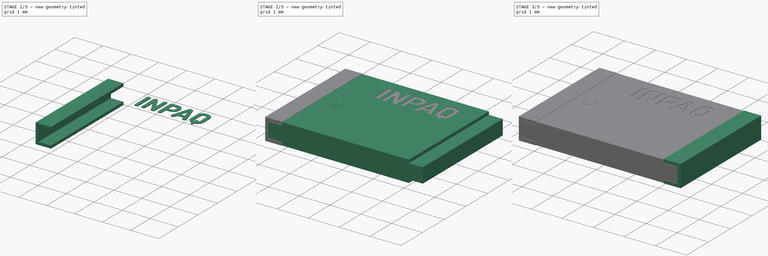
[diagram: build sequence overview — one tinted view per stage of 3, left to right]
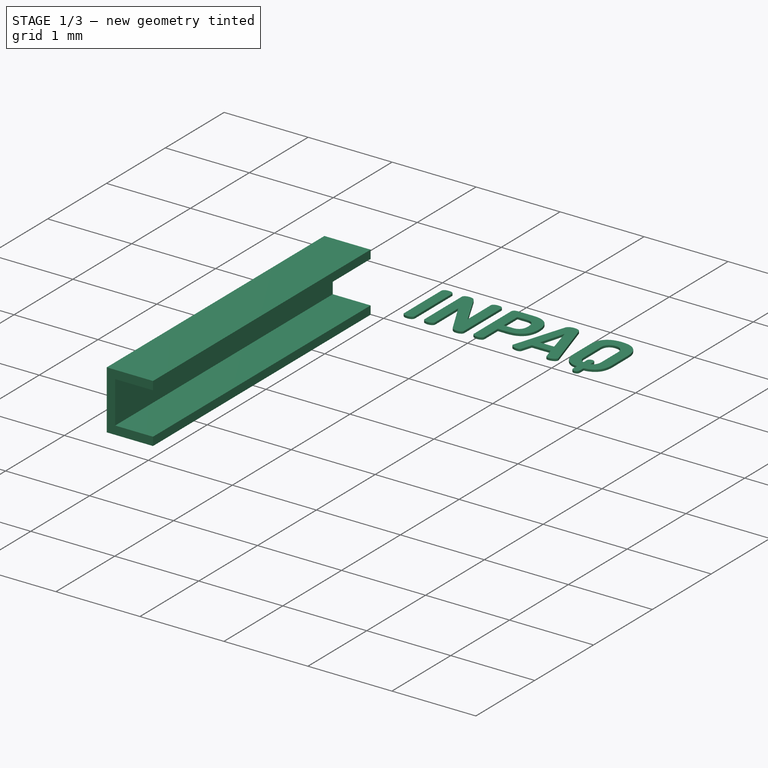
[diagram: stage 1 of 3 — iso view after this stage's code; geometry added in this stage tinted green]
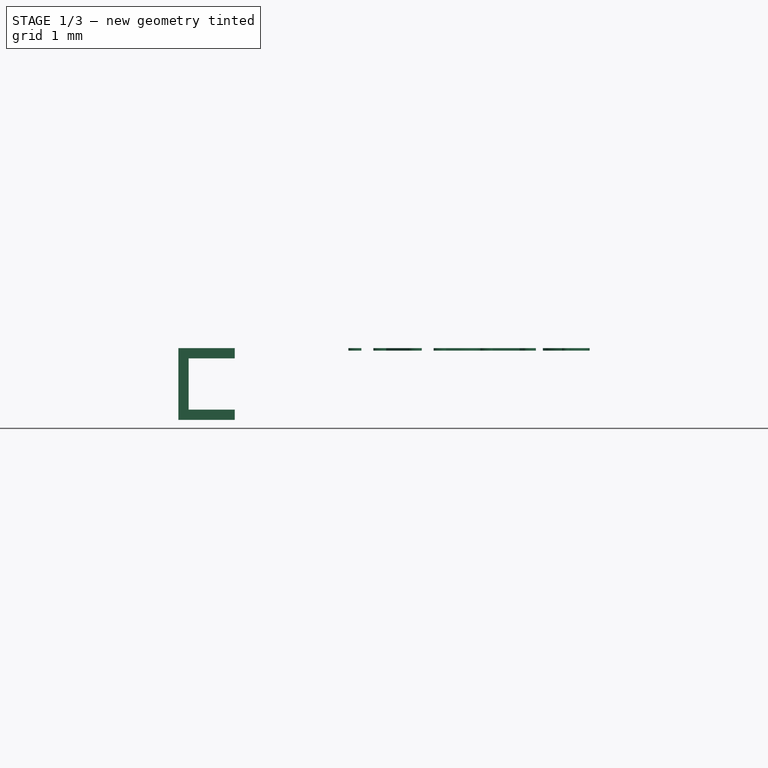
[diagram: stage 1 of 3 — front view after this stage's code; geometry added in this stage tinted green]
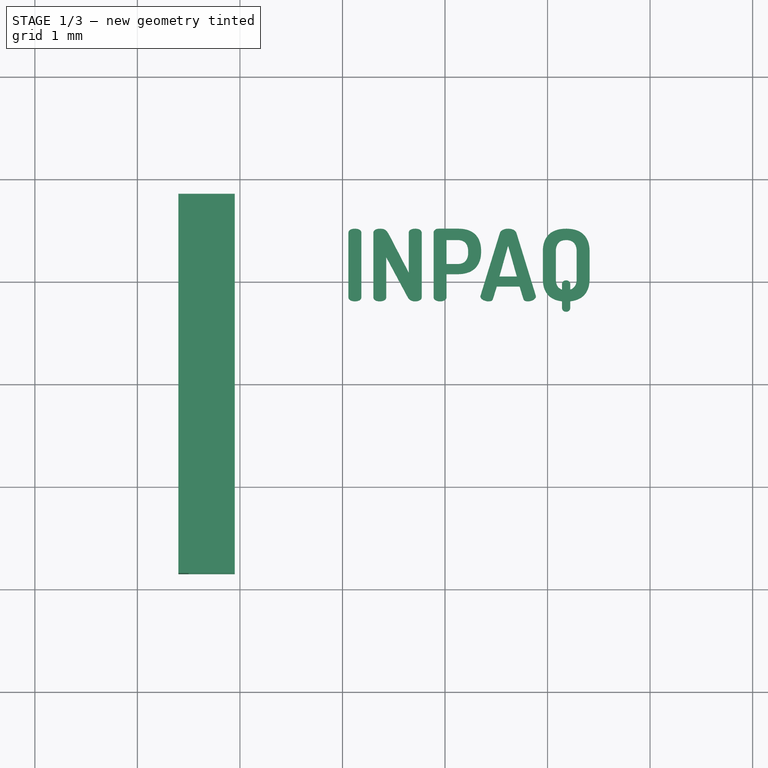
[diagram: stage 1 of 3 — top view after this stage's code; geometry added in this stage tinted green]
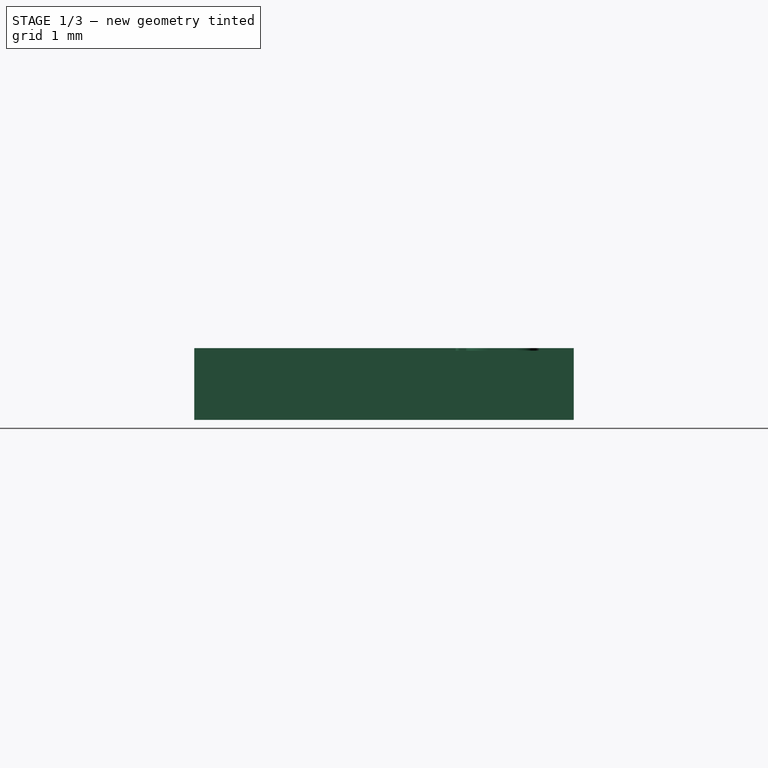
[diagram: stage 1 of 3 — right view after this stage's code; geometry added in this stage tinted green]
FCSTD DOCUMENT  (FreeCAD 0.17R13519 (Git))
Label: ant_bt_inpaq_5036
License: All rights reserved
LicenseURL: http://en.wikipedia.org/wiki/All_rights_reserved
objects: Sketcher::SketchObject×5, PartDesign::Pad×5, PartDesign::Body×5, Part::Part2DObjectPython×1, Part::Extrusion×1, Part::Cut×1, Part::MultiFuse×1
note: 24 computed .brp shape members not serialized (recipe doc carries the construction recipe); baked Part::Feature solids carry a one-line shape summary decoded from their .brp

FEATURE [PartDesign::Body] Body002
  Group = -> [Sketch002,Pad002]
  Origin = -> Origin002
  Placement = pos=(0,0,0.7) rot=(0,1,0;3.14159rad)
  Tip = -> Pad002
FEATURE [Sketcher::SketchObject] Sketch003
  MapMode = 5
  Placement = pos=(0,0,0) rot=(1,0,0;1.5708rad)
  Support = -> [XZ_Plane003]
  sketch-geometry (12):
    g0: LineSegment StartX=-2.5 StartY=0.59 StartZ=0 EndX=-2.05 EndY=0.59 EndZ=0
    g1: LineSegment StartX=-2.05 StartY=0.59 StartZ=0 EndX=-2.05 EndY=0.69 EndZ=0
    g2: LineSegment StartX=-2.05 StartY=0.69 StartZ=0 EndX=2.05 EndY=0.69 EndZ=0
    g3: LineSegment StartX=2.05 StartY=0.69 StartZ=0 EndX=2.05 EndY=0.59 EndZ=0
    g4: LineSegment StartX=2.05 StartY=0.59 StartZ=0 EndX=2.5 EndY=0.59 EndZ=0
    g5: LineSegment StartX=2.5 StartY=0.59 StartZ=0 EndX=2.5 EndY=0.11 EndZ=0
    g6: LineSegment StartX=2.5 StartY=0.11 StartZ=0 EndX=2.05 EndY=0.11 EndZ=0
    g7: LineSegment StartX=2.05 StartY=0.11 StartZ=0 EndX=2.05 EndY=0.01 EndZ=0
    g8: LineSegment StartX=2.05 StartY=0.01 StartZ=0 EndX=-2.05 EndY=0.01 EndZ=0
    g9: LineSegment StartX=-2.05 StartY=0.01 StartZ=0 EndX=-2.05 EndY=0.11 EndZ=0
    g10: LineSegment StartX=-2.05 StartY=0.11 StartZ=0 EndX=-2.5 EndY=0.11 EndZ=0
    g11: LineSegment StartX=-2.5 StartY=0.11 StartZ=0 EndX=-2.5 EndY=0.59 EndZ=0
  constraints (37):
    c: Horizontal(g0)
    c: Coincident(g0,g1)
    c: Vertical(g1)
    c: Coincident(g1,g2)
    c: Horizontal(g2)
    c: Coincident(g2,g3)
    c: Coincident(g3,g4)
    c: Horizontal(g4)
    c: Coincident(g4,g5)
    c: Vertical(g5)
    c: Coincident(g5,g6)
    c: Horizontal(g6)
    c: Coincident(g6,g7)
    c: Coincident(g7,g8)
    c: Horizontal(g8)
    c: Coincident(g8,g9)
    c: Vertical(g9)
    c: Coincident(g9,g10)
    c: Coincident(g10,g11)
    c: Coincident(g11,g0)
    c: Vertical(g11)
    c: Horizontal(g10)
    c: Vertical(g7)
    c: Vertical(g3)
    c: Equal(g2,g8)
    c: Equal(g1,g9)
    c: Equal(g9,g7)
    c: Equal(g7,g3)
    c: Equal(g0,g10)
    c: Equal(g10,g4)
    c: Equal(g4,g6)
    c: Symmetric(g10,g5,g-2)
    c: DistanceX(g0,g0) = 0.45
    c: DistanceY(g1,g1) = 0.1
    c: DistanceY(g11,g11) = 0.48
    c: DistanceX(g10,g5) = 5
    c: DistanceY(g-1,g8) = 0.01
FEATURE [PartDesign::Pad] Pad003
  Length = 3.7
  Length2 = 100
  Midplane = true
  Placement = pos=(0,0,0) rot=(1,0,0;1.5708rad)
  Profile = -> Sketch003
  Type = 0
FEATURE [PartDesign::Body] Body005
  Group = -> [Sketch005,Pad005]
  Origin = -> Origin005
  Tip = -> Pad005
FEATURE [Part::Part2DObjectPython] ShapeString  # Draft 2D object (typed FeaturePython)
  FontFile = <path>
  Placement = pos=(-1,0.8,0.7) rot=(0,0,-1;0rad)
  Size = 0.4
  String = INPAQ
  Support = -> [Pad003]
  Tracking = 0
FEATURE [Part::Extrusion] Extrude002
  Base = -> ShapeString
  Dir = (0,0,1)
  DirMode = 2
  FaceMakerClass = Part::FaceMakerBullseye
  LengthFwd = 0.025
  LengthRev = 0
  Reversed = true
  Solid = false
  Symmetric = false
FEATURE [Sketcher::SketchObject] Sketch001
  MapMode = 5
  Placement = pos=(0,0,0) rot=(1,0,0;1.5708rad)
  Support = -> [XZ_Plane001]
  sketch-geometry (8):
    g0: LineSegment StartX=-2.05 StartY=0.6 StartZ=0 EndX=-2.5 EndY=0.6 EndZ=0
    g1: LineSegment StartX=-2.5 StartY=0.6 StartZ=0 EndX=-2.5 EndY=0.1 EndZ=0
    g2: LineSegment StartX=-2.5 StartY=0.1 StartZ=0 EndX=-2.05 EndY=0.1 EndZ=0
    g3: LineSegment StartX=-2.05 StartY=0.1 StartZ=0 EndX=-2.05 EndY=0 EndZ=0
    g4: LineSegment StartX=-2.05 StartY=0 StartZ=0 EndX=-2.6 EndY=0 EndZ=0
    g5: LineSegment StartX=-2.6 StartY=0 StartZ=0 EndX=-2.6 EndY=0.7 EndZ=0
    g6: LineSegment StartX=-2.6 StartY=0.7 StartZ=0 EndX=-2.05 EndY=0.7 EndZ=0
    g7: LineSegment StartX=-2.05 StartY=0.7 StartZ=0 EndX=-2.05 EndY=0.6 EndZ=0
  constraints (25):
    c: Horizontal(g0)
    c: Coincident(g0,g1)
    c: Vertical(g1)
    c: Coincident(g1,g2)
    c: Horizontal(g2)
    c: Coincident(g2,g3)
    c: Vertical(g3)
    c: Coincident(g3,g4)
    c: Horizontal(g4)
    c: Coincident(g4,g5)
    c: Vertical(g5)
    c: Coincident(g5,g6)
    c: Horizontal(g6)
    c: Coincident(g6,g7)
    c: Vertical(g7)
    c: Equal(g0,g2)
    c: Equal(g6,g4)
    c: DistanceY(g1,g1) = 0.5
    c: Coincident(g0,g7)
    c: DistanceX(g4,g4) = 0.55
    c: DistanceX(g0,g0) = 0.45
    c: Equal(g7,g3)
    c: PointOnObject(g3,g-1)
    c: DistanceY(g5,g5) = 0.7
    c: DistanceX(g5,g-1) = 2.6
FEATURE [PartDesign::Pad] Pad001
  Length = 3.7
  Length2 = 100
  Midplane = true
  Placement = pos=(0,0,0) rot=(1,0,0;1.5708rad)
  Profile = -> Sketch001
  Refine = true
  Type = 0
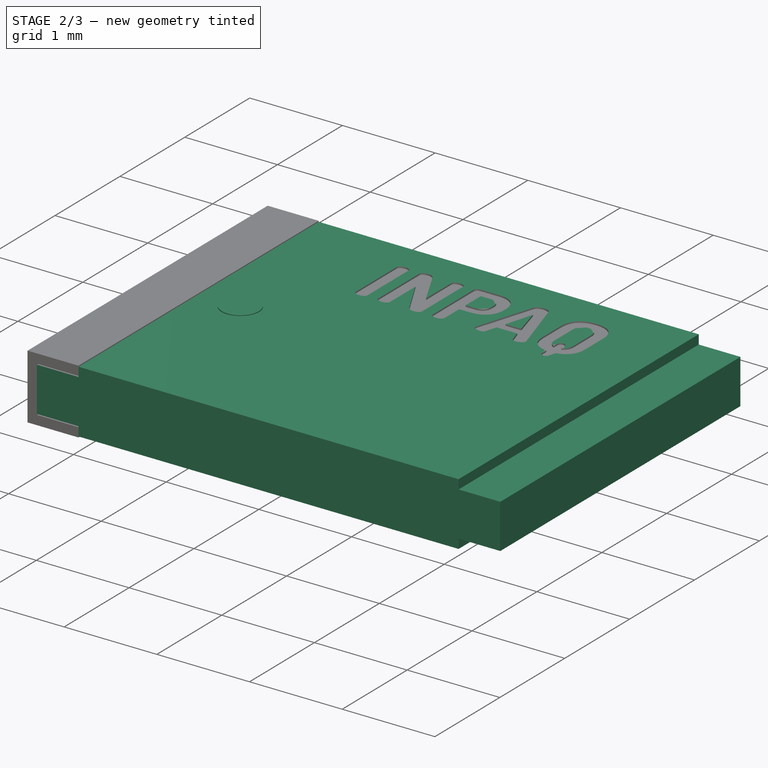
[diagram: stage 2 of 3 — iso view after this stage's code; geometry added in this stage tinted green]
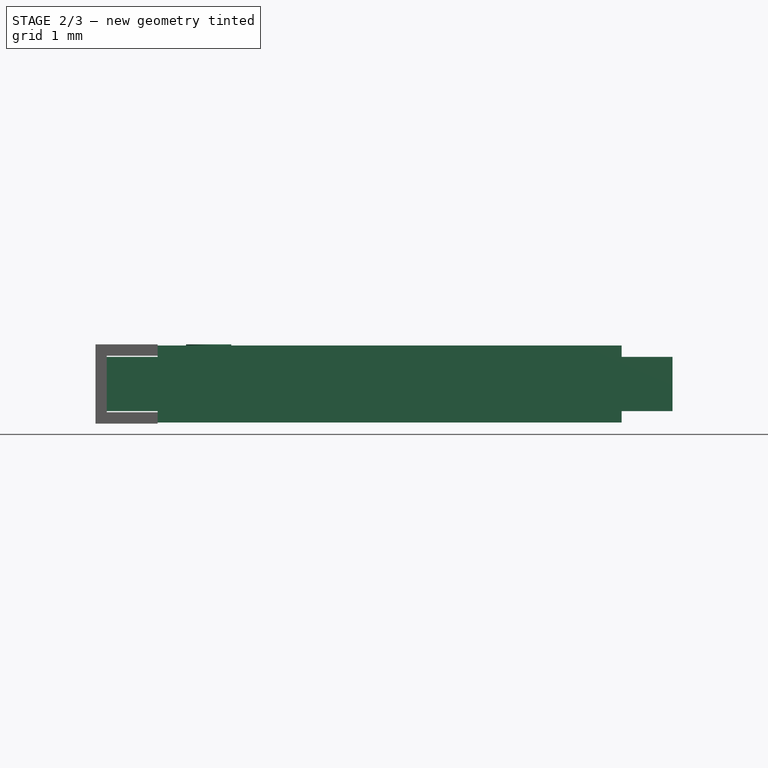
[diagram: stage 2 of 3 — front view after this stage's code; geometry added in this stage tinted green]
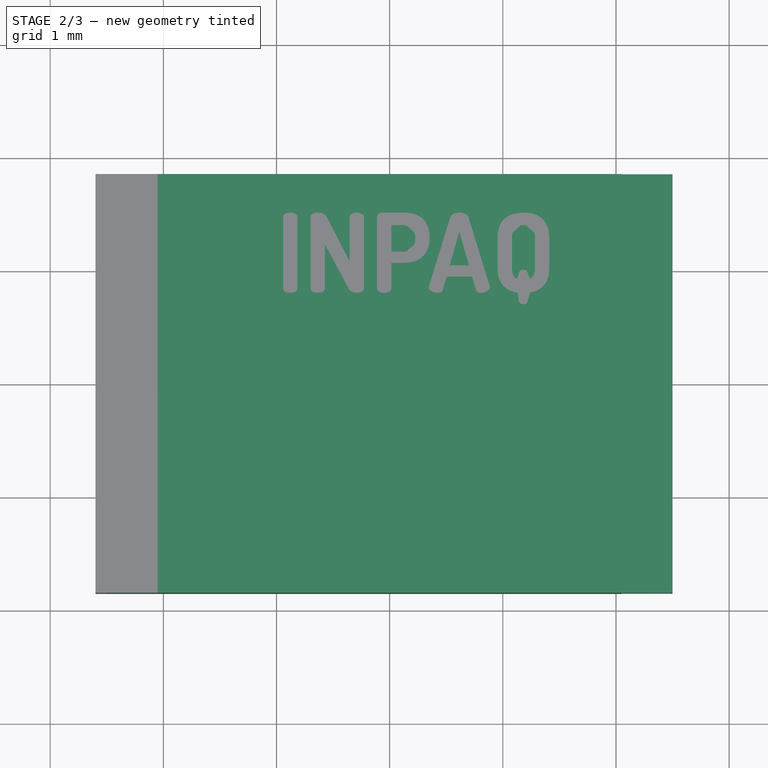
[diagram: stage 2 of 3 — top view after this stage's code; geometry added in this stage tinted green]
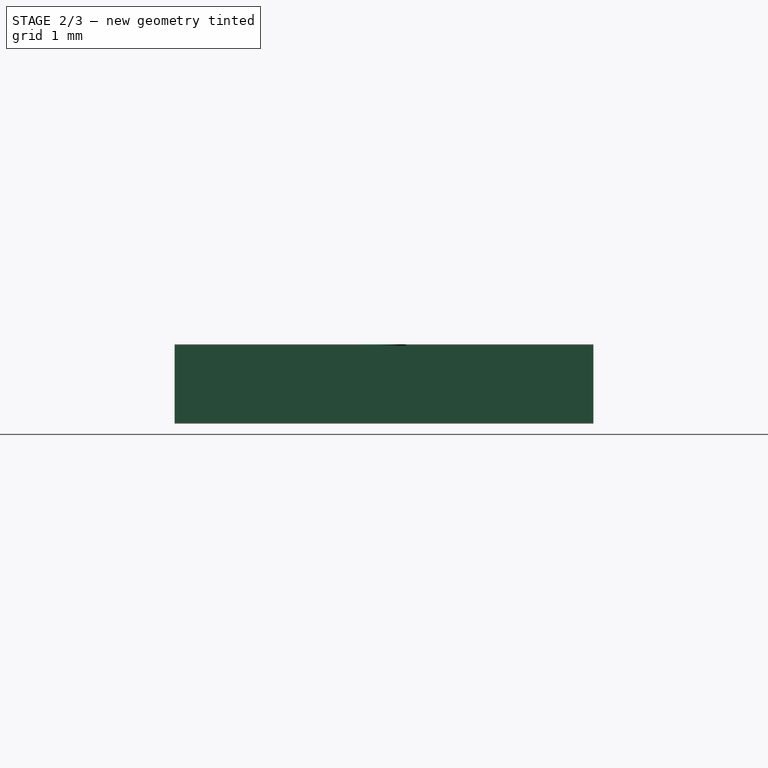
[diagram: stage 2 of 3 — right view after this stage's code; geometry added in this stage tinted green]
FEATURE [PartDesign::Body] Body004
  Group = -> [Sketch004,Pad004]
  Origin = -> Origin004
  Tip = -> Pad004
FEATURE [Sketcher::SketchObject] Sketch005
  AttachmentOffset = pos=(0,0,0.7) rot=(0,0,1;0rad)
  MapMode = 5
  Placement = pos=(0,0,0.7) rot=(0,0,1;0rad)
  Support = -> [XY_Plane005]
  sketch-geometry (1):
    g0: Circle CenterX=-1.6 CenterY=0 CenterZ=0 NormalX=0 NormalY=0 NormalZ=1 AngleXU=0 Radius=0.2
  constraints (3):
    c: PointOnObject(g0,g-1)
    c: Radius(g0) = 0.2
    c: DistanceX(g0,g-1) = 1.6
FEATURE [PartDesign::Pad] Pad005
  Length = 0.05
  Length2 = 100
  Profile = -> Sketch005
  Reversed = true
  Type = 0
FEATURE [Part::Cut] Cut
  Base = -> Body003
  Tool = -> Extrude002
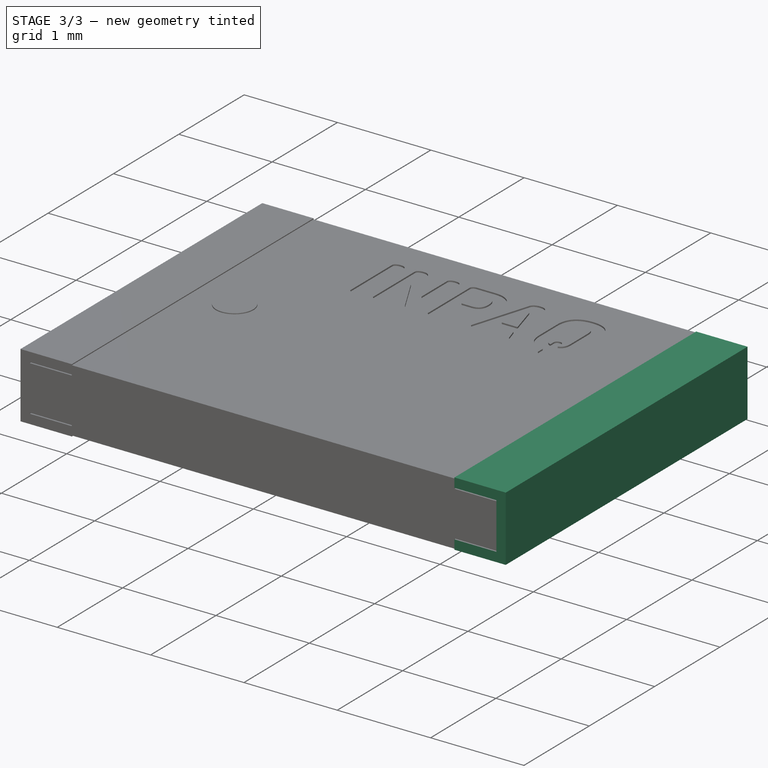
[diagram: stage 3 of 3 — iso view after this stage's code; geometry added in this stage tinted green]
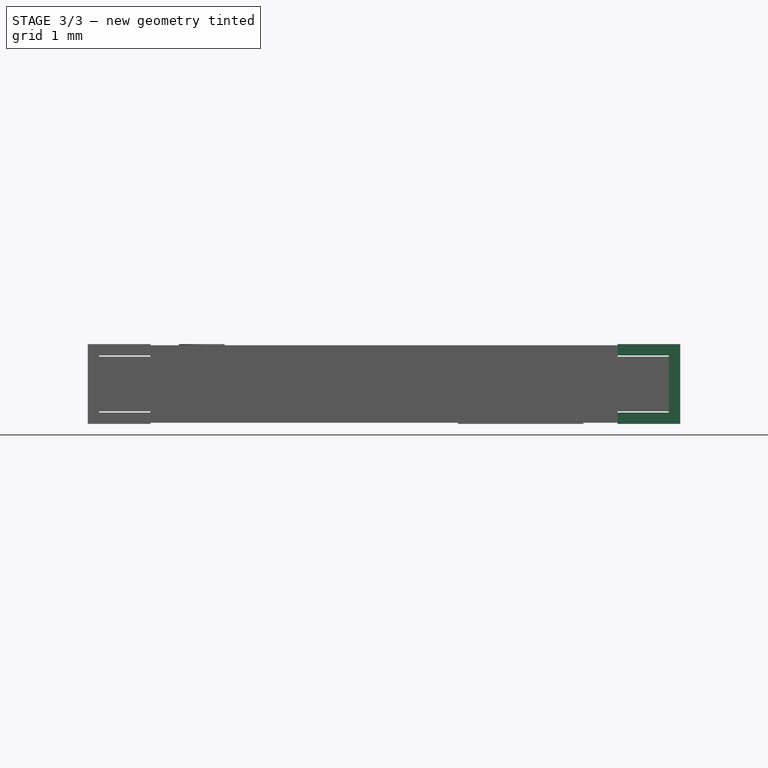
[diagram: stage 3 of 3 — front view after this stage's code; geometry added in this stage tinted green]
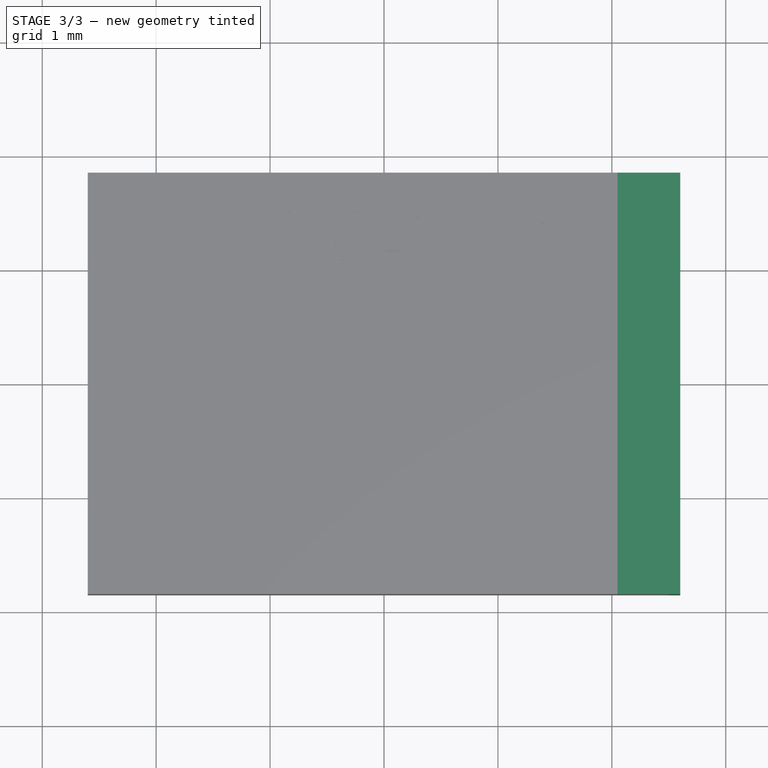
[diagram: stage 3 of 3 — top view after this stage's code; geometry added in this stage tinted green]
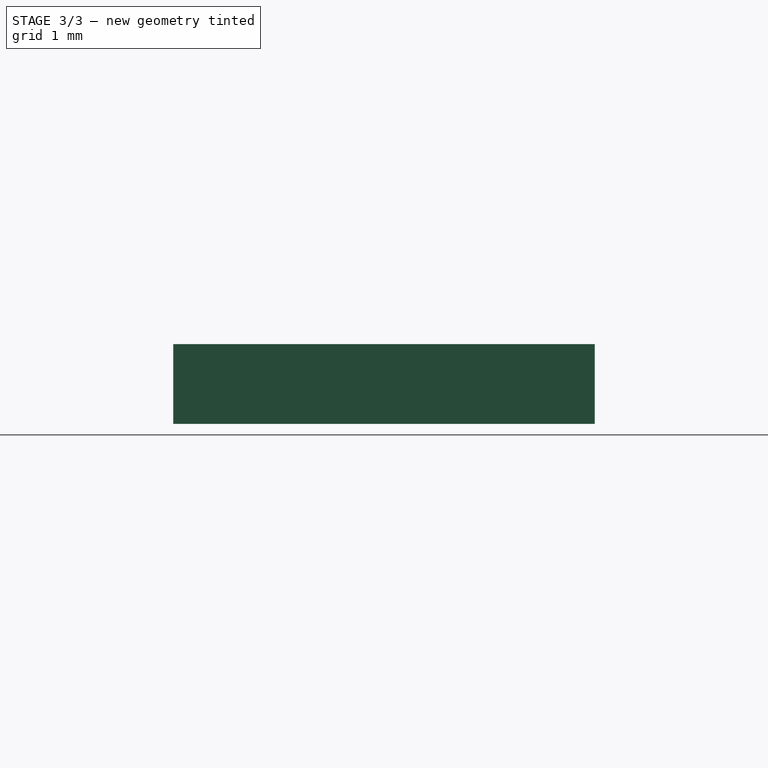
[diagram: stage 3 of 3 — right view after this stage's code; geometry added in this stage tinted green]
FEATURE [Sketcher::SketchObject] Sketch002
  MapMode = 5
  Placement = pos=(0,0,0) rot=(1,0,0;1.5708rad)
  Support = -> [XZ_Plane002]
  sketch-geometry (8):
    g0: LineSegment StartX=-2.05 StartY=0.6 StartZ=0 EndX=-2.5 EndY=0.6 EndZ=0
    g1: LineSegment StartX=-2.5 StartY=0.6 StartZ=0 EndX=-2.5 EndY=0.1 EndZ=0
    g2: LineSegment StartX=-2.5 StartY=0.1 StartZ=0 EndX=-2.05 EndY=0.1 EndZ=0
    g3: LineSegment StartX=-2.05 StartY=0.1 StartZ=0 EndX=-2.05 EndY=0 EndZ=0
    g4: LineSegment StartX=-2.05 StartY=0 StartZ=0 EndX=-2.6 EndY=0 EndZ=0
    g5: LineSegment StartX=-2.6 StartY=0 StartZ=0 EndX=-2.6 EndY=0.7 EndZ=0
    g6: LineSegment StartX=-2.6 StartY=0.7 StartZ=0 EndX=-2.05 EndY=0.7 EndZ=0
    g7: LineSegment StartX=-2.05 StartY=0.7 StartZ=0 EndX=-2.05 EndY=0.6 EndZ=0
  constraints (25):
    c: Horizontal(g0)
    c: Coincident(g0,g1)
    c: Vertical(g1)
    c: Coincident(g1,g2)
    c: Horizontal(g2)
    c: Coincident(g2,g3)
    c: Vertical(g3)
    c: Coincident(g3,g4)
    c: Horizontal(g4)
    c: Coincident(g4,g5)
    c: Vertical(g5)
    c: Coincident(g5,g6)
    c: Horizontal(g6)
    c: Coincident(g6,g7)
    c: Vertical(g7)
    c: Equal(g0,g2)
    c: Equal(g6,g4)
    c: DistanceY(g1,g1) = 0.5
    c: Coincident(g0,g7)
    c: DistanceX(g4,g4) = 0.55
    c: DistanceX(g0,g0) = 0.45
    c: Equal(g7,g3)
    c: PointOnObject(g3,g-1)
    c: DistanceY(g5,g5) = 0.7
    c: DistanceX(g5,g-1) = 2.6
FEATURE [PartDesign::Pad] Pad002
  Length = 3.7
  Length2 = 100
  Midplane = true
  Placement = pos=(0,0,0) rot=(1,0,0;1.5708rad)
  Profile = -> Sketch002
  Refine = true
  Type = 0
FEATURE [PartDesign::Body] Body003
  Group = -> [Sketch003,Pad003]
  Origin = -> Origin003
  Tip = -> Pad003
FEATURE [Sketcher::SketchObject] Sketch004
  MapMode = 5
  Support = -> [XY_Plane004]
  sketch-geometry (4):
    g0: LineSegment StartX=0.65 StartY=-1.18 StartZ=0 EndX=1.75 EndY=-1.18 EndZ=0
    g1: LineSegment StartX=1.75 StartY=-1.18 StartZ=0 EndX=1.75 EndY=-1.73 EndZ=0
    g2: LineSegment StartX=1.75 StartY=-1.73 StartZ=0 EndX=0.65 EndY=-1.73 EndZ=0
    g3: LineSegment StartX=0.65 StartY=-1.73 StartZ=0 EndX=0.65 EndY=-1.18 EndZ=0
  constraints (12):
    c: Coincident(g0,g1)
    c: Coincident(g1,g2)
    c: Coincident(g2,g3)
    c: Coincident(g3,g0)
    c: Horizontal(g0)
    c: Horizontal(g2)
    c: Vertical(g1)
    c: Vertical(g3)
    c: DistanceX(g2,g2) = 1.1
    c: DistanceY(g3,g3) = 0.55
    c: DistanceY(g0,g-1) = 1.18
    c: DistanceX(g-1,g1) = 1.75
FEATURE [PartDesign::Pad] Pad004
  Length = 0.05
  Length2 = 100
  Profile = -> Sketch004
  Type = 0
FEATURE [PartDesign::Body] Body001
  Group = -> [Sketch001,Pad001]
  Origin = -> Origin001
  Tip = -> Pad001
FEATURE [Part::MultiFuse] Fusion  label="ant_bt_inpaq_5036"
  Shapes = -> [Body001,Body002,Body004,Body005,Cut]
note: 1 file-system path scrubbed to <path> (originals preserved in the JSON sidecar)
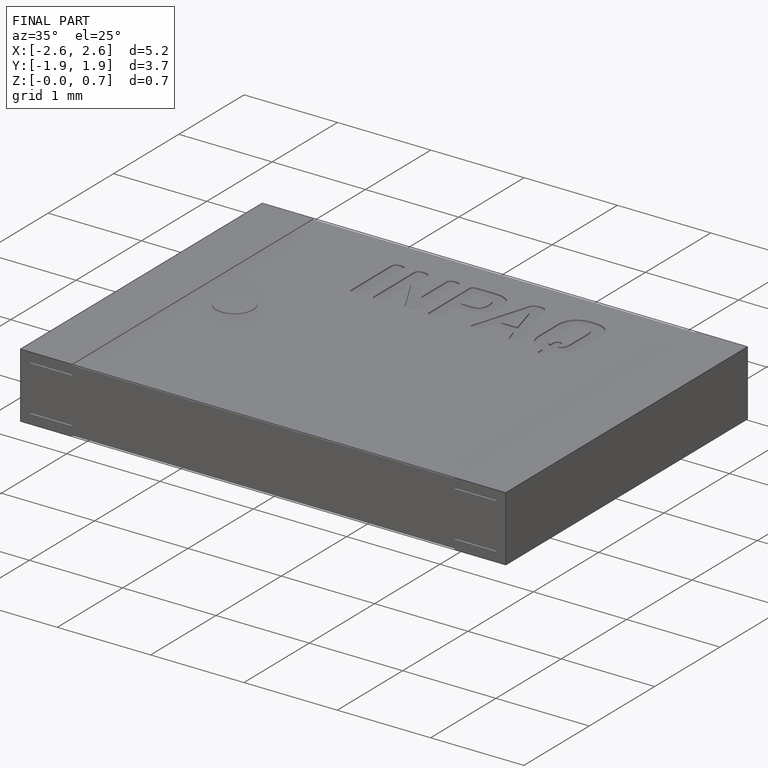
[diagram: finished part — iso view with bounding-box wireframe]
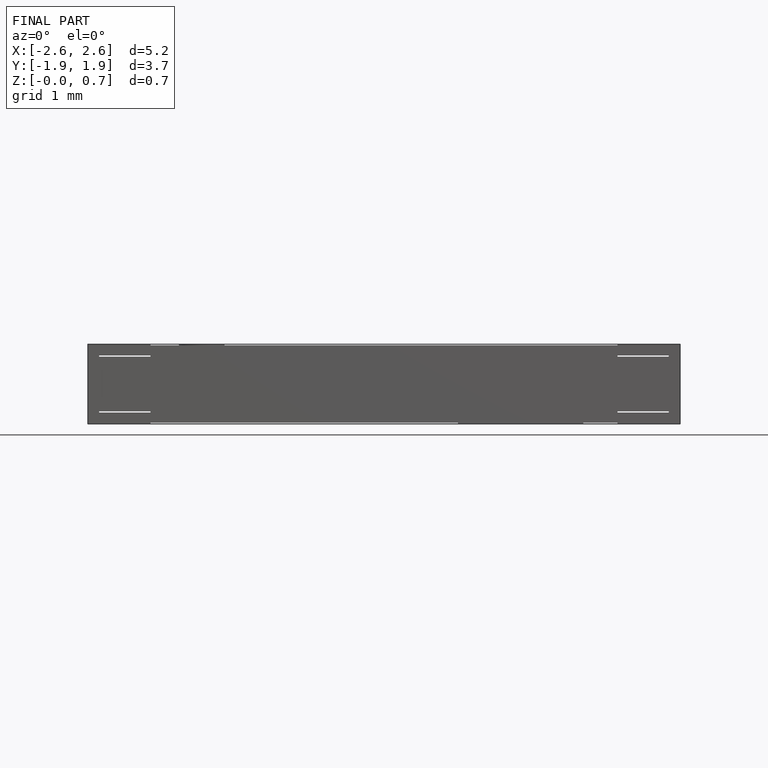
[diagram: finished part — front view with bounding-box wireframe]
